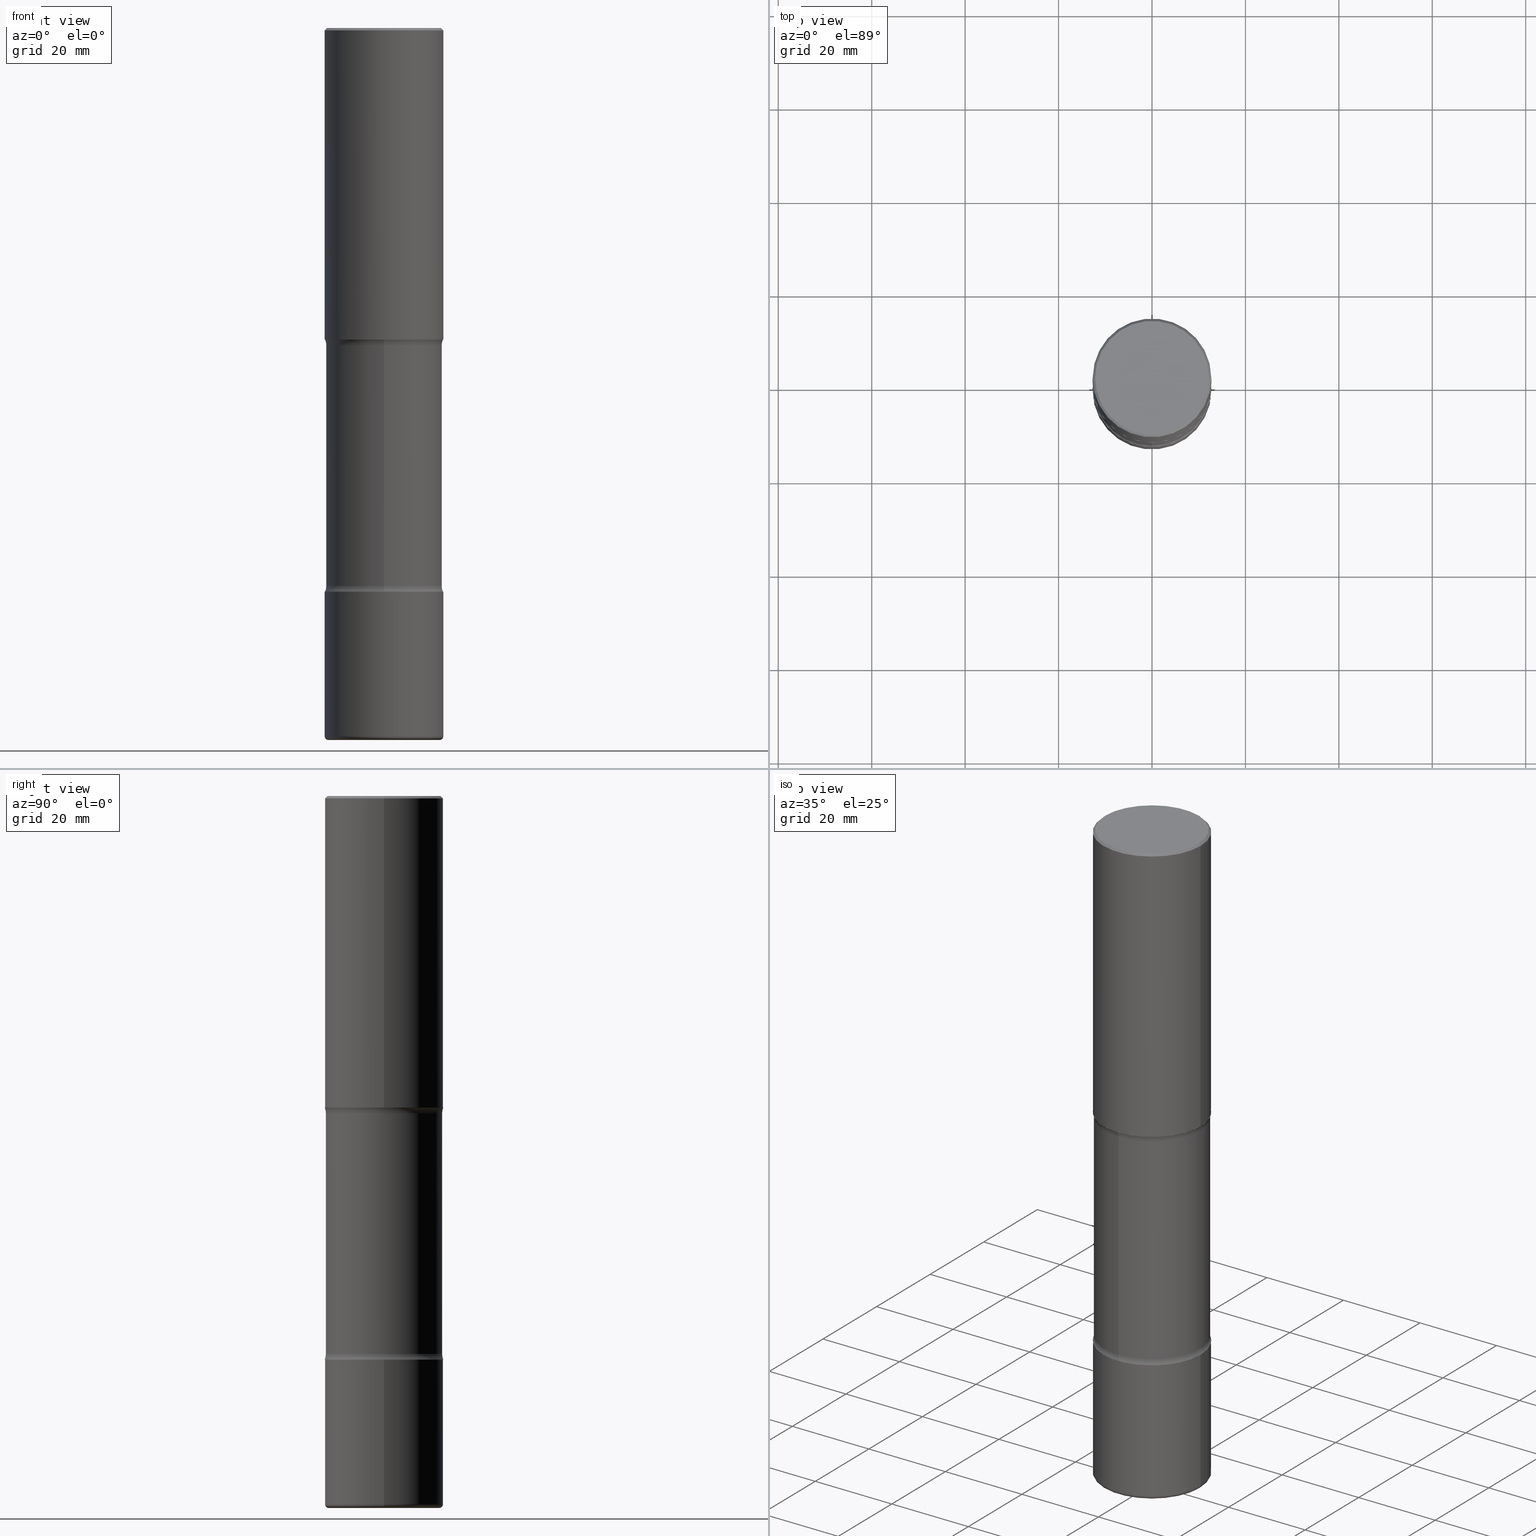
[diagram: canonical four-view strip — front | top / right | iso, engineering-drawing reading convention]
A machine part, canonical four-view strip (front | top / right | iso — engineering-drawing reading convention). The complete STEP part file that produces these views, byte-faithful:
ISO-10303-21;
HEADER;
FILE_DESCRIPTION (( 'STEP AP203' ),
    '1' );
FILE_NAME ('33524.STEP',
    '2024-03-01T22:45:10',
    ( '' ),
    ( '' ),
    'SwSTEP 2.0',
    'SolidWorks 2023',
    '' );
FILE_SCHEMA (( 'CONFIG_CONTROL_DESIGN' ));
ENDSEC;

DATA;
#1 = APPROVAL_DATE_TIME ( #169, #403 ) ;
#2 = EDGE_LOOP ( 'NONE', ( #218, #264, #299, #357 ) ) ;
#3 = ORIENTED_EDGE ( 'NONE', *, *, #385, .T. ) ;
#4 = DIRECTION ( 'NONE',  ( 6.982962677686265922E-15, 1.000000000000000000, -3.345119992241955130E-15 ) ) ;
#5 = ORIENTED_EDGE ( 'NONE', *, *, #114, .T. ) ;
#6 = CARTESIAN_POINT ( 'NONE',  ( 0.5000000000000005551, -3.500078625662632235E-15, -0.02000000000000000042 ) ) ;
#7 = CIRCLE ( 'NONE', #422, 0.5000000000000007772 ) ;
#8 = AXIS2_PLACEMENT_3D ( 'NONE', #406, #235, #541 ) ;
#9 = EDGE_LOOP ( 'NONE', ( #47, #221, #519, #509 ) ) ;
#10 = CARTESIAN_POINT ( 'NONE',  ( -0.5000000000000006661, 3.552713678800505663E-15, -2.459467545127455974E-29 ) ) ;
#11 = CARTESIAN_POINT ( 'NONE',  ( 0.000000000000000000, 0.000000000000000000, 0.000000000000000000 ) ) ;
#12 = DIRECTION ( 'NONE',  ( 2.598079946832093802E-29, -3.272933499350004525E-15, -1.000000000000000000 ) ) ;
#13 = ORIENTED_EDGE ( 'NONE', *, *, #210, .T. ) ;
#14 = CARTESIAN_POINT ( 'NONE',  ( 1.486357676291951651E-28, -2.067570323369244855E-14, -6.000000000000000888 ) ) ;
#15 = TOROIDAL_SURFACE ( 'NONE', #343, 0.6150000000000001021, 0.1250000000000000278 ) ;
#16 = AXIS2_PLACEMENT_3D ( 'NONE', #205, #382, #510 ) ;
#17 = AXIS2_PLACEMENT_3D ( 'NONE', #113, #417, #99 ) ;
#18 = DIRECTION ( 'NONE',  ( 6.982962677686266711E-15, 1.000000000000000000, -2.230079994827969693E-15 ) ) ;
#19 = CARTESIAN_POINT ( 'NONE',  ( -0.5000000000000005551, 3.421651712066274396E-15, -0.02000000000000000042 ) ) ;
#20 = CARTESIAN_POINT ( 'NONE',  ( -0.5000000000000005551, 3.421651712066274396E-15, -0.02000000000000000042 ) ) ;
#21 = CARTESIAN_POINT ( 'NONE',  ( 1.161597682937940108E-28, -1.658453635950494339E-14, -4.750000000000000000 ) ) ;
#22 = APPROVAL ( #503, 'UNSPECIFIED' ) ;
#23 = DIRECTION ( 'NONE',  ( -6.982962677686265133E-15, -1.000000000000000000, 0.000000000000000000 ) ) ;
#24 = CARTESIAN_POINT ( 'NONE',  ( -3.395946508896794322E-15, -0.4900000000000163669, -4.701010205144333653 ) ) ;
#25 = CARTESIAN_POINT ( 'NONE',  ( 1.161597682937940108E-28, -1.658453635950494339E-14, -4.750000000000000000 ) ) ;
#26 = CIRCLE ( 'NONE', #232, 0.4899999999999999911 ) ;
#27 = EDGE_CURVE ( 'NONE', #549, #243, #259, .T. ) ;
#28 = TOROIDAL_SURFACE ( 'NONE', #262, 0.4700000000000005840, 0.03000000000000029379 ) ;
#29 = ORIENTED_EDGE ( 'NONE', *, *, #270, .T. ) ;
#30 = ORIENTED_EDGE ( 'NONE', *, *, #418, .T. ) ;
#31 = ORIENTED_EDGE ( 'NONE', *, *, #206, .T. ) ;
#32 = CIRCLE ( 'NONE', #93, 0.5000000000000006661 ) ;
#33 = COORDINATED_UNIVERSAL_TIME_OFFSET ( 5, 0, .BEHIND. ) ;
#34 = CIRCLE ( 'NONE', #378, 0.03000000000000029379 ) ;
#35 = ORIENTED_EDGE ( 'NONE', *, *, #70, .F. ) ;
#36 = PERSON_AND_ORGANIZATION ( #269, #183 ) ;
#37 = FACE_OUTER_BOUND ( 'NONE', #189, .T. ) ;
#38 = UNCERTAINTY_MEASURE_WITH_UNIT (LENGTH_MEASURE( 1.000000000000000082E-05 ), #325, 'distance_accuracy_value', 'NONE');
#39 = COORDINATED_UNIVERSAL_TIME_OFFSET ( 5, 0, .BEHIND. ) ;
#40 = AXIS2_PLACEMENT_3D ( 'NONE', #60, #462, #106 ) ;
#41 = CIRCLE ( 'NONE', #533, 0.4800000000000005929 ) ;
#42 = ORIENTED_EDGE ( 'NONE', *, *, #57, .T. ) ;
#43 = EDGE_LOOP ( 'NONE', ( #133, #324, #3, #174 ) ) ;
#44 = CARTESIAN_POINT ( 'NONE',  ( 1.459944877292526494E-28, -2.084414359289357934E-14, -5.969999999999999751 ) ) ;
#45 = EDGE_LOOP ( 'NONE', ( #399, #162, #443, #35 ) ) ;
#46 = ADVANCED_FACE ( 'NONE', ( #37 ), #15, .F. ) ;
#47 = ORIENTED_EDGE ( 'NONE', *, *, #261, .F. ) ;
#48 = VECTOR ( 'NONE', #358, 39.37007874015748143 ) ;
#49 = CC_DESIGN_SECURITY_CLASSIFICATION ( #487, ( #209 ) ) ;
#50 = ORIENTED_EDGE ( 'NONE', *, *, #409, .T. ) ;
#51 = CARTESIAN_POINT ( 'NONE',  ( 1.161597682937940108E-28, -1.658453635950494339E-14, -4.750000000000000000 ) ) ;
#52 = DIRECTION ( 'NONE',  ( -1.000000000000000000, 7.105427357600986081E-15, 0.000000000000000000 ) ) ;
#53 = PLANE ( 'NONE',  #356 ) ;
#54 = CARTESIAN_POINT ( 'NONE',  ( 0.5000000000000006661, -2.007601769834807990E-14, -4.750000000000000000 ) ) ;
#55 = DIRECTION ( 'NONE',  ( -2.445468806185136597E-29, 3.491481338843145583E-15, 1.000000000000000000 ) ) ;
#56 = CARTESIAN_POINT ( 'NONE',  ( 0.4800000000000005929, -3.396558832296486043E-15, 1.280553747032483033E-17 ) ) ;
#57 = EDGE_CURVE ( 'NONE', #549, #90, #141, .T. ) ;
#58 = DIRECTION ( 'NONE',  ( -1.000000000000000000, 6.982962677686265922E-15, -4.883557194083112340E-29 ) ) ;
#59 = DIRECTION ( 'NONE',  ( 2.598079946832093241E-29, -3.272933499350004525E-15, -1.000000000000000000 ) ) ;
#60 = CARTESIAN_POINT ( 'NONE',  ( 4.890937612370273159E-31, -6.982962677686291609E-17, -0.02000000000000000042 ) ) ;
#61 = AXIS2_PLACEMENT_3D ( 'NONE', #335, #495, #458 ) ;
#62 = EDGE_CURVE ( 'NONE', #344, #440, #208, .T. ) ;
#63 = DIRECTION ( 'NONE',  ( -1.000000000000000000, 6.982962677686266711E-15, 0.000000000000000000 ) ) ;
#64 = DIRECTION ( 'NONE',  ( 6.982962677686265133E-15, 1.000000000000000000, -3.278217592397110735E-15 ) ) ;
#65 = DIRECTION ( 'NONE',  ( -2.445468806185136877E-29, 3.491481338843145188E-15, 1.000000000000000000 ) ) ;
#66 = CARTESIAN_POINT ( 'NONE',  ( 3.491481338843253657E-15, 0.4999999999999840128, -4.750000000000001776 ) ) ;
#67 = DIRECTION ( 'NONE',  ( -2.445468806185136597E-29, 3.491481338843145583E-15, 1.000000000000000000 ) ) ;
#68 = DIRECTION ( 'NONE',  ( -2.445468806185136597E-29, 3.491481338843145583E-15, 1.000000000000000000 ) ) ;
#69 = DIRECTION ( 'NONE',  ( 2.598079946832093802E-29, -3.272933499350004525E-15, -1.000000000000000000 ) ) ;
#70 = EDGE_CURVE ( 'NONE', #185, #353, #26, .T. ) ;
#71 = DATE_AND_TIME ( #464, #193 ) ;
#72 = AXIS2_PLACEMENT_3D ( 'NONE', #25, #372, #150 ) ;
#73 = VECTOR ( 'NONE', #328, 39.37007874015748143 ) ;
#74 = CARTESIAN_POINT ( 'NONE',  ( 3.491481338843198831E-15, 0.4999999999999911182, -2.625000000000002220 ) ) ;
#75 = APPLICATION_CONTEXT ( 'configuration controlled 3d designs of mechanical parts and assemblies' ) ;
#76 = DIRECTION ( 'NONE',  ( -2.438088387897960049E-29, 3.491481338843145188E-15, 1.000000000000000000 ) ) ;
#77 = DATE_AND_TIME ( #306, #95 ) ;
#78 = LINE ( 'NONE', #472, #295 ) ;
#79 = AXIS2_PLACEMENT_3D ( 'NONE', #256, #432, #483 ) ;
#80 = FACE_OUTER_BOUND ( 'NONE', #207, .T. ) ;
#81 = APPROVAL_DATE_TIME ( #302, #518 ) ;
#82 = DIRECTION ( 'NONE',  ( -1.000000000000000000, 6.982962677686265922E-15, -4.876176775795935793E-29 ) ) ;
#83 = DIRECTION ( 'NONE',  ( 2.598079946832093802E-29, -3.272933499350004525E-15, -1.000000000000000000 ) ) ;
#84 = PERSON_AND_ORGANIZATION ( #269, #183 ) ;
#85 = AXIS2_PLACEMENT_3D ( 'NONE', #322, #69, #195 ) ;
#86 = ORIENTED_EDGE ( 'NONE', *, *, #392, .T. ) ;
#87 = CIRCLE ( 'NONE', #202, 0.5000000000000006661 ) ;
#88 = EDGE_LOOP ( 'NONE', ( #468, #179 ) ) ;
#89 = EDGE_CURVE ( 'NONE', #526, #402, #317, .T. ) ;
#90 = VERTEX_POINT ( 'NONE', #91 ) ;
#91 = CARTESIAN_POINT ( 'NONE',  ( -3.395946508896849543E-15, -0.4900000000000100941, -2.673989794855663238 ) ) ;
#92 = EDGE_LOOP ( 'NONE', ( #118, #480, #223, #30 ) ) ;
#93 = AXIS2_PLACEMENT_3D ( 'NONE', #491, #101, #276 ) ;
#94 = FACE_OUTER_BOUND ( 'NONE', #2, .T. ) ;
#95 = LOCAL_TIME ( 17, 45, 10.00000000000000000, #33 ) ;
#96 = CC_DESIGN_PERSON_AND_ORGANIZATION_ASSIGNMENT ( #423, #346, ( #444 ) ) ;
#97 = MANIFOLD_SOLID_BREP ( 'Body-Move/Copy2[1]', #139 ) ;
#98 = CARTESIAN_POINT ( 'NONE',  ( 1.467281283711081958E-28, -2.094888803305887271E-14, -6.000000000000000888 ) ) ;
#99 = DIRECTION ( 'NONE',  ( 1.000000000000000000, -6.982962677686266711E-15, 4.876176775795935793E-29 ) ) ;
#100 = VERTEX_POINT ( 'NONE', #267 ) ;
#101 = DIRECTION ( 'NONE',  ( -2.445468806185136597E-29, 3.491481338843145583E-15, 1.000000000000000000 ) ) ;
#102 = MANIFOLD_SOLID_BREP ( 'Body-Move/Copy2[2]', #531 ) ;
#103 = EDGE_CURVE ( 'NONE', #265, #243, #304, .T. ) ;
#104 = CARTESIAN_POINT ( 'NONE',  ( 3.421651712066419546E-15, 0.4899999999999793965, -6.000000000000001776 ) ) ;
#105 = EDGE_CURVE ( 'NONE', #178, #482, #552, .T. ) ;
#106 = DIRECTION ( 'NONE',  ( 1.000000000000000000, -6.982962677686266711E-15, 0.000000000000000000 ) ) ;
#107 = DIRECTION ( 'NONE',  ( 1.000000000000000000, -6.982962677686265922E-15, 4.883557194083112901E-29 ) ) ;
#108 = DIRECTION ( 'NONE',  ( 1.000000000000000000, -6.982962677686329031E-15, 0.000000000000000000 ) ) ;
#109 = DIRECTION ( 'NONE',  ( -0.7071067811865459074, 2.468850131082240100E-15, -0.7071067811865491270 ) ) ;
#110 = DIRECTION ( 'NONE',  ( 7.105427357601001859E-15, 1.000000000000000000, -3.491481338843145583E-15 ) ) ;
#111 = AXIS2_PLACEMENT_3D ( 'NONE', #500, #288, #461 ) ;
#112 =( LENGTH_UNIT ( ) NAMED_UNIT ( * ) SI_UNIT ( $, .METRE. ) );
#113 = CARTESIAN_POINT ( 'NONE',  ( 0.000000000000000000, 0.000000000000000000, 0.000000000000000000 ) ) ;
#114 = EDGE_CURVE ( 'NONE', #90, #265, #355, .T. ) ;
#115 = PERSON_AND_ORGANIZATION_ROLE ( 'design_owner' ) ;
#116 = EDGE_CURVE ( 'NONE', #136, #100, #455, .T. ) ;
#117 = APPROVAL_ROLE ( '' ) ;
#118 = ORIENTED_EDGE ( 'NONE', *, *, #114, .F. ) ;
#119 = FACE_OUTER_BOUND ( 'NONE', #477, .T. ) ;
#120 = AXIS2_PLACEMENT_3D ( 'NONE', #290, #58, #23 ) ;
#121 = CIRCLE ( 'NONE', #253, 0.5000000000000007772 ) ;
#122 = ORIENTED_EDGE ( 'NONE', *, *, #294, .T. ) ;
#123 = ORIENTED_EDGE ( 'NONE', *, *, #385, .F. ) ;
#124 = CALENDAR_DATE ( 2024, 1, 3 ) ;
#125 = AXIS2_PLACEMENT_3D ( 'NONE', #144, #68, #448 ) ;
#126 = VECTOR ( 'NONE', #274, 39.37007874015748143 ) ;
#127 = PERSON_AND_ORGANIZATION ( #269, #183 ) ;
#128 = CARTESIAN_POINT ( 'NONE',  ( 3.351822085289412281E-15, 0.4800000000000005929, -1.669508273909561417E-15 ) ) ;
#129 = EDGE_CURVE ( 'NONE', #421, #248, #522, .T. ) ;
#130 = DIRECTION ( 'NONE',  ( 6.982962677686265922E-15, 1.000000000000000000, -3.345119992241952764E-15 ) ) ;
#131 = APPROVAL_STATUS ( 'not_yet_approved' ) ;
#132 = ORIENTED_EDGE ( 'NONE', *, *, #270, .F. ) ;
#133 = ORIENTED_EDGE ( 'NONE', *, *, #145, .F. ) ;
#134 = AXIS2_PLACEMENT_3D ( 'NONE', #160, #199, #548 ) ;
#135 = EDGE_LOOP ( 'NONE', ( #340, #5, #452, #397 ) ) ;
#136 = VERTEX_POINT ( 'NONE', #54 ) ;
#137 = ORIENTED_EDGE ( 'NONE', *, *, #409, .F. ) ;
#138 = DIRECTION ( 'NONE',  ( 1.000000000000000000, -6.982962677686265133E-15, 0.000000000000000000 ) ) ;
#139 = CLOSED_SHELL ( 'NONE', ( #351, #171, #520, #550, #513, #146 ) ) ;
#140 = ORIENTED_EDGE ( 'NONE', *, *, #300, .F. ) ;
#141 = CIRCLE ( 'NONE', #155, 0.4900000000000003242 ) ;
#142 = CARTESIAN_POINT ( 'NONE',  ( 1.467281283711081958E-28, -2.094888803305887271E-14, -6.000000000000000888 ) ) ;
#143 = AXIS2_PLACEMENT_3D ( 'NONE', #542, #152, #529 ) ;
#144 = CARTESIAN_POINT ( 'NONE',  ( 1.467281283711081958E-28, -2.094888803305887271E-14, -6.000000000000000888 ) ) ;
#145 = EDGE_CURVE ( 'NONE', #482, #442, #190, .T. ) ;
#146 = ADVANCED_FACE ( 'NONE', ( #536 ), #540, .F. ) ;
#147 = LINE ( 'NONE', #231, #73 ) ;
#148 = DIRECTION ( 'NONE',  ( 2.438088387897960049E-29, -3.491481338843145188E-15, -1.000000000000000000 ) ) ;
#149 = DIMENSIONAL_EXPONENTS ( 1.000000000000000000, 0.000000000000000000, 0.000000000000000000, 0.000000000000000000, 0.000000000000000000, 0.000000000000000000, 0.000000000000000000 ) ;
#150 = DIRECTION ( 'NONE',  ( 6.982962677686265922E-15, 1.000000000000000000, -3.278217592397111523E-15 ) ) ;
#151 = PLANE ( 'NONE',  #244 ) ;
#152 = DIRECTION ( 'NONE',  ( -2.445468806185136597E-29, 3.491481338843145583E-15, 1.000000000000000000 ) ) ;
#153 = ADVANCED_FACE ( 'NONE', ( #329 ), #435, .F. ) ;
#154 = EDGE_CURVE ( 'NONE', #440, #344, #32, .T. ) ;
#155 = AXIS2_PLACEMENT_3D ( 'NONE', #441, #438, #130 ) ;
#156 = VECTOR ( 'NONE', #404, 39.37007874015748143 ) ;
#157 = LOCAL_TIME ( 17, 45, 10.00000000000000000, #247 ) ;
#158 = CARTESIAN_POINT ( 'NONE',  ( 1.161597682937940108E-28, -1.658453635950494339E-14, -4.750000000000000000 ) ) ;
#159 = PERSON_AND_ORGANIZATION ( #269, #183 ) ;
#160 = CARTESIAN_POINT ( 'NONE',  ( -4.219206268629376327E-15, -0.6150000000000164224, -4.701010205144333653 ) ) ;
#161 = ADVANCED_FACE ( 'NONE', ( #527 ), #543, .F. ) ;
#162 = ORIENTED_EDGE ( 'NONE', *, *, #312, .T. ) ;
#163 = CIRCLE ( 'NONE', #125, 0.4700000000000002509 ) ;
#164 = APPROVAL_PERSON_ORGANIZATION ( #386, #403, #430 ) ;
#165 = CARTESIAN_POINT ( 'NONE',  ( 4.890937612370273159E-31, -6.982962677686291609E-17, -0.02000000000000000042 ) ) ;
#166 = EDGE_CURVE ( 'NONE', #182, #442, #412, .T. ) ;
#167 = APPROVAL_ROLE ( '' ) ;
#168 = ORIENTED_EDGE ( 'NONE', *, *, #439, .T. ) ;
#169 = DATE_AND_TIME ( #555, #157 ) ;
#170 = DIRECTION ( 'NONE',  ( 2.438088387897960049E-29, -3.491481338843145188E-15, -1.000000000000000000 ) ) ;
#171 = ADVANCED_FACE ( 'NONE', ( #94 ), #181, .T. ) ;
#172 = SHAPE_DEFINITION_REPRESENTATION ( #239, #410 ) ;
#173 = ADVANCED_FACE ( 'NONE', ( #371 ), #321, .T. ) ;
#174 = ORIENTED_EDGE ( 'NONE', *, *, #268, .F. ) ;
#175 = AXIS2_PLACEMENT_3D ( 'NONE', #51, #238, #284 ) ;
#176 = AXIS2_PLACEMENT_3D ( 'NONE', #383, #287, #553 ) ;
#177 = PERSON_AND_ORGANIZATION_ROLE ( 'creator' ) ;
#178 = VERTEX_POINT ( 'NONE', #420 ) ;
#179 = ORIENTED_EDGE ( 'NONE', *, *, #474, .T. ) ;
#180 = DIRECTION ( 'NONE',  ( 2.598079946832093802E-29, -3.272933499350004525E-15, -1.000000000000000000 ) ) ;
#181 = TOROIDAL_SURFACE ( 'NONE', #61, 0.4700000000000005840, 0.03000000000000029379 ) ;
#182 = VERTEX_POINT ( 'NONE', #379 ) ;
#183 = ORGANIZATION ( 'UNSPECIFIED', 'UNSPECIFIED', '' ) ;
#184 = ORIENTED_EDGE ( 'NONE', *, *, #166, .T. ) ;
#185 = VERTEX_POINT ( 'NONE', #24 ) ;
#186 = DIRECTION ( 'NONE',  ( 6.982962677686265922E-15, 1.000000000000000000, -3.272933499350004920E-15 ) ) ;
#187 = FACE_OUTER_BOUND ( 'NONE', #405, .T. ) ;
#188 = CARTESIAN_POINT ( 'NONE',  ( 6.095056942361201258E-29, -9.629552673386184613E-15, -2.625000000000000444 ) ) ;
#189 = EDGE_LOOP ( 'NONE', ( #266, #434, #275, #469 ) ) ;
#190 = LINE ( 'NONE', #10, #313 ) ;
#191 = EDGE_CURVE ( 'NONE', #530, #185, #497, .T. ) ;
#192 = VECTOR ( 'NONE', #236, 39.37007874015748143 ) ;
#193 = LOCAL_TIME ( 17, 45, 10.00000000000000000, #291 ) ;
#194 = FACE_OUTER_BOUND ( 'NONE', #45, .T. ) ;
#195 = DIRECTION ( 'NONE',  ( 6.982962677686265922E-15, 1.000000000000000000, -3.272933499350004525E-15 ) ) ;
#196 = FACE_OUTER_BOUND ( 'NONE', #429, .T. ) ;
#197 = ADVANCED_FACE ( 'NONE', ( #534 ), #349, .F. ) ;
#198 = CARTESIAN_POINT ( 'NONE',  ( 3.421651712066385231E-15, 0.4899999999999835598, -4.701010205144337206 ) ) ;
#199 = DIRECTION ( 'NONE',  ( 1.000000000000000000, -6.860497997771530774E-15, 4.843475318745101421E-29 ) ) ;
#200 = AXIS2_PLACEMENT_3D ( 'NONE', #128, #170, #82 ) ;
#201 = CARTESIAN_POINT ( 'NONE',  ( -0.4700000000000005840, -1.750459273482110076E-14, -5.969999999999999751 ) ) ;
#202 = AXIS2_PLACEMENT_3D ( 'NONE', #460, #376, #336 ) ;
#203 = ORIENTED_EDGE ( 'NONE', *, *, #116, .F. ) ;
#204 = EDGE_LOOP ( 'NONE', ( #319, #524 ) ) ;
#205 = CARTESIAN_POINT ( 'NONE',  ( 6.205321761211701849E-29, -9.814258867886811691E-15, -2.673989794855665014 ) ) ;
#206 = EDGE_CURVE ( 'NONE', #402, #442, #250, .T. ) ;
#207 = EDGE_LOOP ( 'NONE', ( #303, #292, #31, #246 ) ) ;
#208 = CIRCLE ( 'NONE', #348, 0.5000000000000006661 ) ;
#209 = PRODUCT_DEFINITION_FORMATION_WITH_SPECIFIED_SOURCE ( 'ANY', '', #505, .NOT_KNOWN. ) ;
#210 = EDGE_CURVE ( 'NONE', #440, #136, #78, .T. ) ;
#211 = ADVANCED_FACE ( 'NONE', ( #119 ), #298, .F. ) ;
#212 = DIRECTION ( 'NONE',  ( 1.000000000000000000, -6.982962677686265922E-15, 4.876176775795935793E-29 ) ) ;
#213 = AXIS2_PLACEMENT_3D ( 'NONE', #21, #148, #326 ) ;
#214 = AXIS2_PLACEMENT_3D ( 'NONE', #165, #538, #63 ) ;
#215 = APPROVAL_STATUS ( 'not_yet_approved' ) ;
#216 = EDGE_LOOP ( 'NONE', ( #42, #168, #362, #342 ) ) ;
#217 = ORIENTED_EDGE ( 'NONE', *, *, #145, .T. ) ;
#218 = ORIENTED_EDGE ( 'NONE', *, *, #129, .T. ) ;
#219 = CARTESIAN_POINT ( 'NONE',  ( 4.294522046777118082E-15, 0.6149999999999905542, -2.673989794855666791 ) ) ;
#220 = AXIS2_PLACEMENT_3D ( 'NONE', #511, #76, #212 ) ;
#221 = ORIENTED_EDGE ( 'NONE', *, *, #191, .T. ) ;
#222 = CARTESIAN_POINT ( 'NONE',  ( 6.095056942361201258E-29, -9.629552673386184613E-15, -2.625000000000000444 ) ) ;
#223 = ORIENTED_EDGE ( 'NONE', *, *, #27, .T. ) ;
#224 = EDGE_CURVE ( 'NONE', #482, #178, #7, .T. ) ;
#225 = DIRECTION ( 'NONE',  ( -2.445468806185136597E-29, 3.491481338843145583E-15, 1.000000000000000000 ) ) ;
#226 = ADVANCED_FACE ( 'NONE', ( #245 ), #334, .F. ) ;
#227 = CARTESIAN_POINT ( 'NONE',  ( 6.222336345975120465E-29, -9.789893014095570638E-15, -2.673989794855665014 ) ) ;
#228 = CARTESIAN_POINT ( 'NONE',  ( -3.430248998885653369E-15, -0.5000000000000172085, -4.749999999999999112 ) ) ;
#229 = DIRECTION ( 'NONE',  ( 1.000000000000000000, -6.982962677686266711E-15, 4.876176775795935793E-29 ) ) ;
#230 = CARTESIAN_POINT ( 'NONE',  ( 1.459944877292526494E-28, -2.084414359289357934E-14, -5.969999999999999751 ) ) ;
#231 = CARTESIAN_POINT ( 'NONE',  ( 0.5000000000000006661, -3.491481338843138088E-15, 2.438088387897971260E-29 ) ) ;
#232 = AXIS2_PLACEMENT_3D ( 'NONE', #398, #83, #4 ) ;
#233 = DIRECTION ( 'NONE',  ( 6.982962677686265922E-15, 1.000000000000000000, -3.272933499350004525E-15 ) ) ;
#234 = CC_DESIGN_APPROVAL ( #518, ( #487 ) ) ;
#235 = DIRECTION ( 'NONE',  ( 2.598079946832093802E-29, -3.272933499350004525E-15, -1.000000000000000000 ) ) ;
#236 = DIRECTION ( 'NONE',  ( -2.445468806185136877E-29, 3.491481338843145188E-15, 1.000000000000000000 ) ) ;
#237 = FACE_OUTER_BOUND ( 'NONE', #43, .T. ) ;
#238 = DIRECTION ( 'NONE',  ( -2.445468806185136597E-29, 3.491481338843145583E-15, 1.000000000000000000 ) ) ;
#239 = PRODUCT_DEFINITION_SHAPE ( 'NONE', 'NONE',  #444 ) ;
#240 = DIRECTION ( 'NONE',  ( -6.982962677686265922E-15, -1.000000000000000000, 3.272933499350004525E-15 ) ) ;
#241 = APPROVAL_DATE_TIME ( #71, #22 ) ;
#242 = CIRCLE ( 'NONE', #391, 0.03000000000000029379 ) ;
#243 = VERTEX_POINT ( 'NONE', #74 ) ;
#244 = AXIS2_PLACEMENT_3D ( 'NONE', #98, #273, #373 ) ;
#245 = FACE_OUTER_BOUND ( 'NONE', #135, .T. ) ;
#246 = ORIENTED_EDGE ( 'NONE', *, *, #166, .F. ) ;
#247 = COORDINATED_UNIVERSAL_TIME_OFFSET ( 5, 0, .BEHIND. ) ;
#248 = VERTEX_POINT ( 'NONE', #501 ) ;
#249 = DIRECTION ( 'NONE',  ( -2.445468806185136877E-29, 3.491481338843145188E-15, 1.000000000000000000 ) ) ;
#250 = CIRCLE ( 'NONE', #445, 0.5000000000000005551 ) ;
#251 = ADVANCED_FACE ( 'NONE', ( #537 ), #375, .T. ) ;
#252 = ADVANCED_FACE ( 'NONE', ( #369 ), #289, .T. ) ;
#253 = AXIS2_PLACEMENT_3D ( 'NONE', #188, #12, #64 ) ;
#254 = EDGE_LOOP ( 'NONE', ( #316, #387 ) ) ;
#255 = CARTESIAN_POINT ( 'NONE',  ( 6.419355616235984688E-29, -9.165138514463258190E-15, -2.625000000000000444 ) ) ;
#256 = CARTESIAN_POINT ( 'NONE',  ( 6.419355616235984688E-29, -9.165138514463258190E-15, -2.625000000000000444 ) ) ;
#257 = CC_DESIGN_PERSON_AND_ORGANIZATION_ASSIGNMENT ( #127, #433, ( #487 ) ) ;
#258 = SECURITY_CLASSIFICATION_LEVEL ( 'unclassified' ) ;
#259 = CIRCLE ( 'NONE', #427, 0.1250000000000000278 ) ;
#260 = CIRCLE ( 'NONE', #72, 0.5000000000000006661 ) ;
#261 = EDGE_CURVE ( 'NONE', #530, #479, #260, .T. ) ;
#262 = AXIS2_PLACEMENT_3D ( 'NONE', #230, #459, #107 ) ;
#263 = DATE_TIME_ROLE ( 'classification_date' ) ;
#264 = ORIENTED_EDGE ( 'NONE', *, *, #300, .T. ) ;
#265 = VERTEX_POINT ( 'NONE', #485 ) ;
#266 = ORIENTED_EDGE ( 'NONE', *, *, #191, .F. ) ;
#267 = CARTESIAN_POINT ( 'NONE',  ( -0.5000000000000006661, -1.516162629739875255E-14, -4.750000000000000000 ) ) ;
#268 = EDGE_CURVE ( 'NONE', #442, #402, #377, .T. ) ;
#269 = PERSON ( 'UNSPECIFIED', 'UNSPECIFIED', 'UNSPECIFIED', ('UNSPECIFIED'), ('UNSPECIFIED'), ('UNSPECIFIED') ) ;
#270 = EDGE_CURVE ( 'NONE', #248, #421, #163, .T. ) ;
#271 = AXIS2_PLACEMENT_3D ( 'NONE', #493, #59, #233 ) ;
#272 = DIRECTION ( 'NONE',  ( 6.982962677686266711E-15, 1.000000000000000000, -2.230079994827969693E-15 ) ) ;
#273 = DIRECTION ( 'NONE',  ( 2.438088387897960049E-29, -3.491481338843145188E-15, -1.000000000000000000 ) ) ;
#274 = DIRECTION ( 'NONE',  ( 2.598079946832093802E-29, -3.272933499350004525E-15, -1.000000000000000000 ) ) ;
#275 = ORIENTED_EDGE ( 'NONE', *, *, #318, .T. ) ;
#276 = DIRECTION ( 'NONE',  ( 1.000000000000000000, -6.982962677686269077E-15, 0.000000000000000000 ) ) ;
#277 = CARTESIAN_POINT ( 'NONE',  ( -3.131554243005659264E-46, 4.471029511141341874E-32, 1.280553747030123384E-17 ) ) ;
#278 = DIRECTION ( 'NONE',  ( 6.860497997771532351E-15, 1.000000000000000000, 0.000000000000000000 ) ) ;
#279 = CARTESIAN_POINT ( 'NONE',  ( 0.000000000000000000, 0.000000000000000000, 0.000000000000000000 ) ) ;
#280 = CARTESIAN_POINT ( 'NONE',  ( 3.421651712066334744E-15, 0.4899999999999905542, -2.673989794855666347 ) ) ;
#281 = CYLINDRICAL_SURFACE ( 'NONE', #143, 0.5000000000000006661 ) ;
#282 =( NAMED_UNIT ( * ) SI_UNIT ( $, .STERADIAN. ) SOLID_ANGLE_UNIT ( ) );
#283 = AXIS2_PLACEMENT_3D ( 'NONE', #142, #225, #453 ) ;
#284 = DIRECTION ( 'NONE',  ( 1.000000000000000000, -6.982962677686265133E-15, 0.000000000000000000 ) ) ;
#285 = FACE_OUTER_BOUND ( 'NONE', #426, .T. ) ;
#286 = LINE ( 'NONE', #104, #156 ) ;
#287 = DIRECTION ( 'NONE',  ( 0.000000000000000000, 0.000000000000000000, 1.000000000000000000 ) ) ;
#288 = DIRECTION ( 'NONE',  ( 2.445468806185136597E-29, -3.491481338843145583E-15, -1.000000000000000000 ) ) ;
#289 = CYLINDRICAL_SURFACE ( 'NONE', #470, 0.5000000000000006661 ) ;
#290 = CARTESIAN_POINT ( 'NONE',  ( 4.294522046777168570E-15, 0.6149999999999836708, -4.701010205144338094 ) ) ;
#291 = COORDINATED_UNIVERSAL_TIME_OFFSET ( 5, 0, .BEHIND. ) ;
#292 = ORIENTED_EDGE ( 'NONE', *, *, #89, .T. ) ;
#293 = MANIFOLD_SOLID_BREP ( 'Body-Move/Copy2[4]', #466 ) ;
#294 = EDGE_CURVE ( 'NONE', #526, #182, #514, .T. ) ;
#295 = VECTOR ( 'NONE', #249, 39.37007874015748143 ) ;
#296 = ORIENTED_EDGE ( 'NONE', *, *, #105, .F. ) ;
#297 = CIRCLE ( 'NONE', #446, 0.5000000000000006661 ) ;
#298 = PLANE ( 'NONE',  #200 ) ;
#299 = ORIENTED_EDGE ( 'NONE', *, *, #154, .F. ) ;
#300 = EDGE_CURVE ( 'NONE', #248, #344, #242, .T. ) ;
#301 = ORIENTED_EDGE ( 'NONE', *, *, #337, .F. ) ;
#302 = DATE_AND_TIME ( #124, #508 ) ;
#303 = ORIENTED_EDGE ( 'NONE', *, *, #294, .F. ) ;
#304 = CIRCLE ( 'NONE', #507, 0.5000000000000007772 ) ;
#305 = LOCAL_TIME ( 17, 45, 10.00000000000000000, #39 ) ;
#306 = CALENDAR_DATE ( 2024, 1, 3 ) ;
#307 = DIRECTION ( 'NONE',  ( 6.982962677686265133E-15, 1.000000000000000000, -3.278217592397110735E-15 ) ) ;
#308 = DIRECTION ( 'NONE',  ( -2.445468806185136597E-29, 3.491481338843145583E-15, 1.000000000000000000 ) ) ;
#309 = DATE_TIME_ROLE ( 'creation_date' ) ;
#310 = DIRECTION ( 'NONE',  ( -2.445468806185136597E-29, 3.491481338843145583E-15, 1.000000000000000000 ) ) ;
#311 = ORIENTED_EDGE ( 'NONE', *, *, #62, .T. ) ;
#312 = EDGE_CURVE ( 'NONE', #90, #549, #467, .T. ) ;
#313 = VECTOR ( 'NONE', #65, 39.37007874015748143 ) ;
#314 = ORIENTED_EDGE ( 'NONE', *, *, #210, .F. ) ;
#315 = CARTESIAN_POINT ( 'NONE',  ( 1.149617381423846373E-28, -1.641348940497263768E-14, -4.701010205144335430 ) ) ;
#316 = ORIENTED_EDGE ( 'NONE', *, *, #418, .F. ) ;
#317 = LINE ( 'NONE', #6, #48 ) ;
#318 = EDGE_CURVE ( 'NONE', #479, #353, #365, .T. ) ;
#319 = ORIENTED_EDGE ( 'NONE', *, *, #407, .T. ) ;
#320 = DIRECTION ( 'NONE',  ( -2.445468806185136597E-29, 3.491481338843145583E-15, 1.000000000000000000 ) ) ;
#321 = CONICAL_SURFACE ( 'NONE', #111, 0.5000000000000005551, 0.7853981633974460586 ) ;
#322 = CARTESIAN_POINT ( 'NONE',  ( 1.149617381423846373E-28, -1.641348940497263768E-14, -4.701010205144335430 ) ) ;
#323 = AXIS2_PLACEMENT_3D ( 'NONE', #528, #363, #18 ) ;
#324 = ORIENTED_EDGE ( 'NONE', *, *, #224, .T. ) ;
#325 =( CONVERSION_BASED_UNIT ( 'INCH', #339 ) LENGTH_UNIT ( ) NAMED_UNIT ( #149 ) );
#326 = DIRECTION ( 'NONE',  ( -1.000000000000000000, 6.982962677686265922E-15, -4.876176775795935793E-29 ) ) ;
#327 = CYLINDRICAL_SURFACE ( 'NONE', #515, 0.5000000000000006661 ) ;
#328 = DIRECTION ( 'NONE',  ( -2.445468806185136877E-29, 3.491481338843145188E-15, 1.000000000000000000 ) ) ;
#329 = FACE_OUTER_BOUND ( 'NONE', #92, .T. ) ;
#330 = CARTESIAN_POINT ( 'NONE',  ( -0.5000000000000006661, 3.552713678800505663E-15, -2.459467545127455974E-29 ) ) ;
#331 = APPLICATION_PROTOCOL_DEFINITION ( 'international standard', 'config_control_design', 1994, #75 ) ;
#332 = DIRECTION ( 'NONE',  ( -2.445468806185136597E-29, 3.491481338843145583E-15, 1.000000000000000000 ) ) ;
#333 = AXIS2_PLACEMENT_3D ( 'NONE', #14, #544, #272 ) ;
#334 = TOROIDAL_SURFACE ( 'NONE', #16, 0.6150000000000004352, 0.1250000000000000278 ) ;
#335 = CARTESIAN_POINT ( 'NONE',  ( 1.459944877292526494E-28, -2.084414359289357934E-14, -5.969999999999999751 ) ) ;
#336 = DIRECTION ( 'NONE',  ( 6.982962677686265922E-15, 1.000000000000000000, -3.278217592397111523E-15 ) ) ;
#337 = EDGE_CURVE ( 'NONE', #344, #100, #374, .T. ) ;
#338 = APPLICATION_PROTOCOL_DEFINITION ( 'international standard', 'config_control_design', 1994, #457 ) ;
#339 = LENGTH_MEASURE_WITH_UNIT ( LENGTH_MEASURE( 0.02539999999999999897 ), #112 );
#340 = ORIENTED_EDGE ( 'NONE', *, *, #312, .F. ) ;
#341 = ADVANCED_FACE ( 'NONE', ( #498 ), #345, .F. ) ;
#342 = ORIENTED_EDGE ( 'NONE', *, *, #380, .F. ) ;
#343 = AXIS2_PLACEMENT_3D ( 'NONE', #315, #347, #560 ) ;
#344 = VERTEX_POINT ( 'NONE', #366 ) ;
#345 = TOROIDAL_SURFACE ( 'NONE', #85, 0.6150000000000001021, 0.1250000000000000278 ) ;
#346 = PERSON_AND_ORGANIZATION_ROLE ( 'creator' ) ;
#347 = DIRECTION ( 'NONE',  ( 2.598079946832093802E-29, -3.272933499350004525E-15, -1.000000000000000000 ) ) ;
#348 = AXIS2_PLACEMENT_3D ( 'NONE', #44, #310, #400 ) ;
#349 = PLANE ( 'NONE',  #220 ) ;
#350 = EDGE_LOOP ( 'NONE', ( #296, #384 ) ) ;
#351 = ADVANCED_FACE ( 'NONE', ( #535 ), #281, .T. ) ;
#352 = ADVANCED_FACE ( 'NONE', ( #237 ), #370, .T. ) ;
#353 = VERTEX_POINT ( 'NONE', #198 ) ;
#354 = ORIENTED_EDGE ( 'NONE', *, *, #337, .T. ) ;
#355 = CIRCLE ( 'NONE', #558, 0.1250000000000000278 ) ;
#356 = AXIS2_PLACEMENT_3D ( 'NONE', #551, #389, #240 ) ;
#357 = ORIENTED_EDGE ( 'NONE', *, *, #392, .F. ) ;
#358 = DIRECTION ( 'NONE',  ( 0.7071067811865459074, -7.319954787623249734E-15, -0.7071067811865491270 ) ) ;
#359 = ORIENTED_EDGE ( 'NONE', *, *, #89, .F. ) ;
#360 = CARTESIAN_POINT ( 'NONE',  ( 0.4700000000000002509, -2.423088049157142248E-14, -6.000000000000000888 ) ) ;
#361 = CC_DESIGN_PERSON_AND_ORGANIZATION_ASSIGNMENT ( #84, #557, ( #209 ) ) ;
#362 = ORIENTED_EDGE ( 'NONE', *, *, #554, .F. ) ;
#363 = DIRECTION ( 'NONE',  ( 2.598079946832093802E-29, -3.272933499350004525E-15, -1.000000000000000000 ) ) ;
#364 = DESIGN_CONTEXT ( 'detailed design', #457, 'design' ) ;
#365 = CIRCLE ( 'NONE', #120, 0.1250000000000000278 ) ;
#366 = CARTESIAN_POINT ( 'NONE',  ( -0.5000000000000007772, -1.729142991409307210E-14, -5.969999999999999751 ) ) ;
#367 = CONICAL_SURFACE ( 'NONE', #214, 0.5000000000000005551, 0.7853981633974460586 ) ;
#368 = DIRECTION ( 'NONE',  ( 1.000000000000000000, -6.860497997771530774E-15, 4.843475318745101421E-29 ) ) ;
#369 = FACE_OUTER_BOUND ( 'NONE', #490, .T. ) ;
#370 = CYLINDRICAL_SURFACE ( 'NONE', #17, 0.5000000000000006661 ) ;
#371 = FACE_OUTER_BOUND ( 'NONE', #516, .T. ) ;
#372 = DIRECTION ( 'NONE',  ( 2.598079946832093802E-29, -3.272933499350004525E-15, -1.000000000000000000 ) ) ;
#373 = DIRECTION ( 'NONE',  ( -1.000000000000000000, 6.982962677686265922E-15, -4.876176775795935793E-29 ) ) ;
#374 = LINE ( 'NONE', #330, #192 ) ;
#375 = CYLINDRICAL_SURFACE ( 'NONE', #333, 0.4900000000000001021 ) ;
#376 = DIRECTION ( 'NONE',  ( 2.598079946832093802E-29, -3.272933499350004525E-15, -1.000000000000000000 ) ) ;
#377 = CIRCLE ( 'NONE', #40, 0.5000000000000005551 ) ;
#378 = AXIS2_PLACEMENT_3D ( 'NONE', #456, #502, #108 ) ;
#379 = CARTESIAN_POINT ( 'NONE',  ( -0.4800000000000005929, 3.386736898677843141E-15, 1.280553747027767124E-17 ) ) ;
#380 = EDGE_CURVE ( 'NONE', #549, #353, #286, .T. ) ;
#381 = ORIENTED_EDGE ( 'NONE', *, *, #62, .F. ) ;
#382 = DIRECTION ( 'NONE',  ( 2.598079946832093802E-29, -3.272933499350004525E-15, -1.000000000000000000 ) ) ;
#383 = CARTESIAN_POINT ( 'NONE',  ( 0.000000000000000000, 0.000000000000000000, 0.000000000000000000 ) ) ;
#384 = ORIENTED_EDGE ( 'NONE', *, *, #224, .F. ) ;
#385 = EDGE_CURVE ( 'NONE', #178, #402, #147, .T. ) ;
#386 = PERSON_AND_ORGANIZATION ( #269, #183 ) ;
#387 = ORIENTED_EDGE ( 'NONE', *, *, #103, .F. ) ;
#388 = CARTESIAN_POINT ( 'NONE',  ( 4.890937612370273159E-31, -6.982962677686291609E-17, -0.02000000000000000042 ) ) ;
#389 = DIRECTION ( 'NONE',  ( -2.598079946832093241E-29, 3.272933499350004525E-15, 1.000000000000000000 ) ) ;
#390 = DATE_AND_TIME ( #431, #305 ) ;
#391 = AXIS2_PLACEMENT_3D ( 'NONE', #201, #110, #52 ) ;
#392 = EDGE_CURVE ( 'NONE', #421, #440, #34, .T. ) ;
#393 = APPROVAL_PERSON_ORGANIZATION ( #396, #518, #167 ) ;
#394 = ORIENTED_EDGE ( 'NONE', *, *, #474, .F. ) ;
#395 = DIRECTION ( 'NONE',  ( -6.982962677686265133E-15, -1.000000000000000000, 0.000000000000000000 ) ) ;
#396 = PERSON_AND_ORGANIZATION ( #269, #183 ) ;
#397 = ORIENTED_EDGE ( 'NONE', *, *, #27, .F. ) ;
#398 = CARTESIAN_POINT ( 'NONE',  ( 1.148869742576547963E-28, -1.642419601879555421E-14, -4.701010205144335430 ) ) ;
#399 = ORIENTED_EDGE ( 'NONE', *, *, #439, .F. ) ;
#400 = DIRECTION ( 'NONE',  ( 1.000000000000000000, -6.982962677686269077E-15, 0.000000000000000000 ) ) ;
#401 = CC_DESIGN_APPROVAL ( #403, ( #209 ) ) ;
#402 = VERTEX_POINT ( 'NONE', #463 ) ;
#403 = APPROVAL ( #131, 'UNSPECIFIED' ) ;
#404 = DIRECTION ( 'NONE',  ( 2.598079946832093802E-29, -3.272933499350004525E-15, -1.000000000000000000 ) ) ;
#405 = EDGE_LOOP ( 'NONE', ( #301, #311, #13, #394 ) ) ;
#406 = CARTESIAN_POINT ( 'NONE',  ( 1.148869742576547963E-28, -1.642419601879555421E-14, -4.701010205144335430 ) ) ;
#407 = EDGE_CURVE ( 'NONE', #479, #530, #87, .T. ) ;
#408 = DIRECTION ( 'NONE',  ( 2.598079946832093802E-29, -3.272933499350004525E-15, -1.000000000000000000 ) ) ;
#409 = EDGE_CURVE ( 'NONE', #182, #526, #41, .T. ) ;
#410 = ADVANCED_BREP_SHAPE_REPRESENTATION ( '33524', ( #97, #102, #293, #176 ), #411 ) ;
#411 =( GEOMETRIC_REPRESENTATION_CONTEXT ( 3 ) GLOBAL_UNCERTAINTY_ASSIGNED_CONTEXT ( ( #38 ) ) GLOBAL_UNIT_ASSIGNED_CONTEXT ( ( #325, #539, #282 ) ) REPRESENTATION_CONTEXT ( 'NONE', 'WORKASPACE' ) );
#412 = LINE ( 'NONE', #19, #428 ) ;
#413 = CARTESIAN_POINT ( 'NONE',  ( -3.131554243005659264E-46, 4.471029511141341874E-32, 1.280553747030123384E-17 ) ) ;
#414 = CARTESIAN_POINT ( 'NONE',  ( 0.5000000000000007772, -2.433562493173672216E-14, -5.969999999999999751 ) ) ;
#415 = CARTESIAN_POINT ( 'NONE',  ( -4.219206268629432336E-15, -0.6150000000000102052, -2.673989794855662794 ) ) ;
#416 = DIRECTION ( 'NONE',  ( -2.445468806185136597E-29, 3.491481338843145583E-15, 1.000000000000000000 ) ) ;
#417 = DIRECTION ( 'NONE',  ( -2.445468806185136597E-29, 3.491481338843145583E-15, 1.000000000000000000 ) ) ;
#418 = EDGE_CURVE ( 'NONE', #243, #265, #121, .T. ) ;
#419 = PERSON_AND_ORGANIZATION ( #269, #183 ) ;
#420 = CARTESIAN_POINT ( 'NONE',  ( 0.5000000000000007772, -1.265661985330639786E-14, -2.625000000000000444 ) ) ;
#421 = VERTEX_POINT ( 'NONE', #360 ) ;
#422 = AXIS2_PLACEMENT_3D ( 'NONE', #255, #308, #476 ) ;
#423 = PERSON_AND_ORGANIZATION ( #269, #183 ) ;
#424 = ORIENTED_EDGE ( 'NONE', *, *, #206, .F. ) ;
#425 = PRODUCT_RELATED_PRODUCT_CATEGORY ( 'detail', '', ( #505 ) ) ;
#426 = EDGE_LOOP ( 'NONE', ( #140, #29, #86, #381 ) ) ;
#427 = AXIS2_PLACEMENT_3D ( 'NONE', #219, #525, #395 ) ;
#428 = VECTOR ( 'NONE', #109, 39.37007874015748143 ) ;
#429 = EDGE_LOOP ( 'NONE', ( #471, #132 ) ) ;
#430 = APPROVAL_ROLE ( '' ) ;
#431 = CALENDAR_DATE ( 2024, 1, 3 ) ;
#432 = DIRECTION ( 'NONE',  ( -2.445468806185136597E-29, 3.491481338843145583E-15, 1.000000000000000000 ) ) ;
#433 = PERSON_AND_ORGANIZATION_ROLE ( 'classification_officer' ) ;
#434 = ORIENTED_EDGE ( 'NONE', *, *, #407, .F. ) ;
#435 = TOROIDAL_SURFACE ( 'NONE', #545, 0.6150000000000004352, 0.1250000000000000278 ) ;
#436 = CIRCLE ( 'NONE', #8, 0.4899999999999999911 ) ;
#437 = ORIENTED_EDGE ( 'NONE', *, *, #154, .T. ) ;
#438 = DIRECTION ( 'NONE',  ( 2.598079946832093802E-29, -3.272933499350004525E-15, -1.000000000000000000 ) ) ;
#439 = EDGE_CURVE ( 'NONE', #90, #185, #489, .T. ) ;
#440 = VERTEX_POINT ( 'NONE', #414 ) ;
#441 = CARTESIAN_POINT ( 'NONE',  ( 6.222336345975120465E-29, -9.789893014095570638E-15, -2.673989794855665014 ) ) ;
#442 = VERTEX_POINT ( 'NONE', #20 ) ;
#443 = ORIENTED_EDGE ( 'NONE', *, *, #380, .T. ) ;
#444 = PRODUCT_DEFINITION ( 'UNKNOWN', '', #209, #364 ) ;
#445 = AXIS2_PLACEMENT_3D ( 'NONE', #388, #517, #506 ) ;
#446 = AXIS2_PLACEMENT_3D ( 'NONE', #158, #416, #138 ) ;
#447 = ORIENTED_EDGE ( 'NONE', *, *, #268, .T. ) ;
#448 = DIRECTION ( 'NONE',  ( 1.000000000000000000, -6.982962677686267499E-15, 0.000000000000000000 ) ) ;
#449 = ADVANCED_FACE ( 'NONE', ( #451 ), #53, .F. ) ;
#450 = CYLINDRICAL_SURFACE ( 'NONE', #323, 0.4900000000000001021 ) ;
#451 = FACE_OUTER_BOUND ( 'NONE', #204, .T. ) ;
#452 = ORIENTED_EDGE ( 'NONE', *, *, #103, .T. ) ;
#453 = DIRECTION ( 'NONE',  ( 1.000000000000000000, -6.982962677686267499E-15, 0.000000000000000000 ) ) ;
#454 = CARTESIAN_POINT ( 'NONE',  ( 6.205321761211701849E-29, -9.814258867886811691E-15, -2.673989794855665014 ) ) ;
#455 = CIRCLE ( 'NONE', #175, 0.5000000000000006661 ) ;
#456 = CARTESIAN_POINT ( 'NONE',  ( 0.4700000000000005840, -2.412613605140612911E-14, -5.969999999999999751 ) ) ;
#457 = APPLICATION_CONTEXT ( 'configuration controlled 3d designs of mechanical parts and assemblies' ) ;
#458 = DIRECTION ( 'NONE',  ( 1.000000000000000000, -6.982962677686265922E-15, 4.883557194083112901E-29 ) ) ;
#459 = DIRECTION ( 'NONE',  ( -2.445468806185136597E-29, 3.491481338843145583E-15, 1.000000000000000000 ) ) ;
#460 = CARTESIAN_POINT ( 'NONE',  ( 1.161597682937940108E-28, -1.658453635950494339E-14, -4.750000000000000000 ) ) ;
#461 = DIRECTION ( 'NONE',  ( -1.000000000000000000, 6.982962677686266711E-15, 0.000000000000000000 ) ) ;
#462 = DIRECTION ( 'NONE',  ( -2.445468806185136597E-29, 3.491481338843145583E-15, 1.000000000000000000 ) ) ;
#463 = CARTESIAN_POINT ( 'NONE',  ( 0.5000000000000005551, -3.500078625662632235E-15, -0.02000000000000000042 ) ) ;
#464 = CALENDAR_DATE ( 2024, 1, 3 ) ;
#465 = CC_DESIGN_DATE_AND_TIME_ASSIGNMENT ( #390, #263, ( #487 ) ) ;
#466 = CLOSED_SHELL ( 'NONE', ( #251, #341, #226, #153, #161, #449, #46, #484 ) ) ;
#467 = CIRCLE ( 'NONE', #532, 0.4900000000000003242 ) ;
#468 = ORIENTED_EDGE ( 'NONE', *, *, #116, .T. ) ;
#469 = ORIENTED_EDGE ( 'NONE', *, *, #554, .T. ) ;
#470 = AXIS2_PLACEMENT_3D ( 'NONE', #279, #55, #229 ) ;
#471 = ORIENTED_EDGE ( 'NONE', *, *, #129, .F. ) ;
#472 = CARTESIAN_POINT ( 'NONE',  ( 0.5000000000000006661, -3.491481338843138088E-15, 2.438088387897971260E-29 ) ) ;
#473 = ADVANCED_FACE ( 'NONE', ( #80 ), #367, .T. ) ;
#474 = EDGE_CURVE ( 'NONE', #100, #136, #297, .T. ) ;
#475 = DIRECTION ( 'NONE',  ( 2.598079946832093802E-29, -3.272933499350004525E-15, -1.000000000000000000 ) ) ;
#476 = DIRECTION ( 'NONE',  ( 1.000000000000000000, -6.982962677686267499E-15, 0.000000000000000000 ) ) ;
#477 = EDGE_LOOP ( 'NONE', ( #50, #122 ) ) ;
#478 = ORIENTED_EDGE ( 'NONE', *, *, #105, .T. ) ;
#479 = VERTEX_POINT ( 'NONE', #66 ) ;
#480 = ORIENTED_EDGE ( 'NONE', *, *, #57, .F. ) ;
#481 = CARTESIAN_POINT ( 'NONE',  ( -0.5000000000000007772, -1.064770391819553504E-15, -2.625000000000000444 ) ) ;
#482 = VERTEX_POINT ( 'NONE', #481 ) ;
#483 = DIRECTION ( 'NONE',  ( 1.000000000000000000, -6.982962677686267499E-15, 0.000000000000000000 ) ) ;
#484 = ADVANCED_FACE ( 'NONE', ( #194 ), #450, .T. ) ;
#485 = CARTESIAN_POINT ( 'NONE',  ( -3.430248998885708983E-15, -0.5000000000000103251, -2.624999999999999112 ) ) ;
#486 = AXIS2_PLACEMENT_3D ( 'NONE', #413, #332, #496 ) ;
#487 = SECURITY_CLASSIFICATION ( '', '', #258 ) ;
#488 = DIRECTION ( 'NONE',  ( 1.000000000000000000, -6.982962677686266711E-15, 4.876176775795935793E-29 ) ) ;
#489 = LINE ( 'NONE', #492, #126 ) ;
#490 = EDGE_LOOP ( 'NONE', ( #478, #217, #424, #123 ) ) ;
#491 = CARTESIAN_POINT ( 'NONE',  ( 1.459944877292526494E-28, -2.084414359289357934E-14, -5.969999999999999751 ) ) ;
#492 = CARTESIAN_POINT ( 'NONE',  ( -3.361644018907902538E-15, -0.4900000000000208078, -5.999999999999999112 ) ) ;
#493 = CARTESIAN_POINT ( 'NONE',  ( 6.419355616235984688E-29, -9.165138514463258190E-15, -2.625000000000000444 ) ) ;
#494 = MECHANICAL_CONTEXT ( 'NONE', #75, 'mechanical' ) ;
#495 = DIRECTION ( 'NONE',  ( -2.445468806185136597E-29, 3.491481338843145583E-15, 1.000000000000000000 ) ) ;
#496 = DIRECTION ( 'NONE',  ( 1.000000000000000000, -6.982962677686266711E-15, 4.876036955247123238E-29 ) ) ;
#497 = CIRCLE ( 'NONE', #134, 0.1250000000000000278 ) ;
#498 = FACE_OUTER_BOUND ( 'NONE', #9, .T. ) ;
#499 = CC_DESIGN_APPROVAL ( #22, ( #444 ) ) ;
#500 = CARTESIAN_POINT ( 'NONE',  ( 4.890937612370273159E-31, -6.982962677686291609E-17, -0.02000000000000000042 ) ) ;
#501 = CARTESIAN_POINT ( 'NONE',  ( -0.4700000000000002509, -1.745038354453973469E-14, -6.000000000000000888 ) ) ;
#502 = DIRECTION ( 'NONE',  ( -6.982962677686266711E-15, -1.000000000000000000, 3.491481338843145583E-15 ) ) ;
#503 = APPROVAL_STATUS ( 'not_yet_approved' ) ;
#504 = CC_DESIGN_DATE_AND_TIME_ASSIGNMENT ( #77, #309, ( #444 ) ) ;
#505 = PRODUCT ( '33524', '33524', '', ( #494 ) ) ;
#506 = DIRECTION ( 'NONE',  ( 1.000000000000000000, -6.982962677686266711E-15, 0.000000000000000000 ) ) ;
#507 = AXIS2_PLACEMENT_3D ( 'NONE', #222, #475, #307 ) ;
#508 = LOCAL_TIME ( 17, 45, 10.00000000000000000, #512 ) ;
#509 = ORIENTED_EDGE ( 'NONE', *, *, #318, .F. ) ;
#510 = DIRECTION ( 'NONE',  ( 6.982962677686265922E-15, 1.000000000000000000, -3.272933499350004920E-15 ) ) ;
#511 = CARTESIAN_POINT ( 'NONE',  ( 6.419355616235984688E-29, -9.165138514463258190E-15, -2.625000000000000444 ) ) ;
#512 = COORDINATED_UNIVERSAL_TIME_OFFSET ( 5, 0, .BEHIND. ) ;
#513 = ADVANCED_FACE ( 'NONE', ( #187 ), #327, .T. ) ;
#514 = CIRCLE ( 'NONE', #486, 0.4800000000000005929 ) ;
#515 = AXIS2_PLACEMENT_3D ( 'NONE', #11, #320, #488 ) ;
#516 = EDGE_LOOP ( 'NONE', ( #359, #137, #184, #447 ) ) ;
#517 = DIRECTION ( 'NONE',  ( -2.445468806185136597E-29, 3.491481338843145583E-15, 1.000000000000000000 ) ) ;
#518 = APPROVAL ( #215, 'UNSPECIFIED' ) ;
#519 = ORIENTED_EDGE ( 'NONE', *, *, #70, .T. ) ;
#520 = ADVANCED_FACE ( 'NONE', ( #196 ), #151, .T. ) ;
#521 = EDGE_LOOP ( 'NONE', ( #437, #354, #203, #314 ) ) ;
#522 = CIRCLE ( 'NONE', #283, 0.4700000000000002509 ) ;
#523 = DIRECTION ( 'NONE',  ( 6.982962677686265922E-15, 1.000000000000000000, -3.345119992241952764E-15 ) ) ;
#524 = ORIENTED_EDGE ( 'NONE', *, *, #261, .T. ) ;
#525 = DIRECTION ( 'NONE',  ( -1.000000000000000000, 6.982962677686265922E-15, -4.883557194083112340E-29 ) ) ;
#526 = VERTEX_POINT ( 'NONE', #56 ) ;
#527 = FACE_OUTER_BOUND ( 'NONE', #254, .T. ) ;
#528 = CARTESIAN_POINT ( 'NONE',  ( 1.486357676291951651E-28, -2.067570323369244855E-14, -6.000000000000000888 ) ) ;
#529 = DIRECTION ( 'NONE',  ( 1.000000000000000000, -6.982962677686266711E-15, 4.876176775795935793E-29 ) ) ;
#530 = VERTEX_POINT ( 'NONE', #228 ) ;
#531 = CLOSED_SHELL ( 'NONE', ( #252, #473, #173, #211, #197, #352 ) ) ;
#532 = AXIS2_PLACEMENT_3D ( 'NONE', #227, #180, #523 ) ;
#533 = AXIS2_PLACEMENT_3D ( 'NONE', #277, #67, #547 ) ;
#534 = FACE_OUTER_BOUND ( 'NONE', #350, .T. ) ;
#535 = FACE_OUTER_BOUND ( 'NONE', #521, .T. ) ;
#536 = FACE_OUTER_BOUND ( 'NONE', #88, .T. ) ;
#537 = FACE_OUTER_BOUND ( 'NONE', #216, .T. ) ;
#538 = DIRECTION ( 'NONE',  ( 2.445468806185136597E-29, -3.491481338843145583E-15, -1.000000000000000000 ) ) ;
#539 =( NAMED_UNIT ( * ) PLANE_ANGLE_UNIT ( ) SI_UNIT ( $, .RADIAN. ) );
#540 = PLANE ( 'NONE',  #213 ) ;
#541 = DIRECTION ( 'NONE',  ( 6.982962677686265922E-15, 1.000000000000000000, -3.345119992241955130E-15 ) ) ;
#542 = CARTESIAN_POINT ( 'NONE',  ( 0.000000000000000000, 0.000000000000000000, 0.000000000000000000 ) ) ;
#543 = PLANE ( 'NONE',  #271 ) ;
#544 = DIRECTION ( 'NONE',  ( 2.598079946832093802E-29, -3.272933499350004525E-15, -1.000000000000000000 ) ) ;
#545 = AXIS2_PLACEMENT_3D ( 'NONE', #454, #408, #186 ) ;
#546 = CC_DESIGN_PERSON_AND_ORGANIZATION_ASSIGNMENT ( #159, #115, ( #505 ) ) ;
#547 = DIRECTION ( 'NONE',  ( 1.000000000000000000, -6.982962677686266711E-15, 4.876036955247123238E-29 ) ) ;
#548 = DIRECTION ( 'NONE',  ( 6.860497997771532351E-15, 1.000000000000000000, 0.000000000000000000 ) ) ;
#549 = VERTEX_POINT ( 'NONE', #280 ) ;
#550 = ADVANCED_FACE ( 'NONE', ( #285 ), #28, .T. ) ;
#551 = CARTESIAN_POINT ( 'NONE',  ( 1.161597682937940108E-28, -1.658453635950494339E-14, -4.750000000000000000 ) ) ;
#552 = CIRCLE ( 'NONE', #79, 0.5000000000000007772 ) ;
#553 = DIRECTION ( 'NONE',  ( 1.000000000000000000, 0.000000000000000000, 0.000000000000000000 ) ) ;
#554 = EDGE_CURVE ( 'NONE', #353, #185, #436, .T. ) ;
#555 = CALENDAR_DATE ( 2024, 1, 3 ) ;
#556 = CC_DESIGN_PERSON_AND_ORGANIZATION_ASSIGNMENT ( #36, #177, ( #209 ) ) ;
#557 = PERSON_AND_ORGANIZATION_ROLE ( 'design_supplier' ) ;
#558 = AXIS2_PLACEMENT_3D ( 'NONE', #415, #368, #278 ) ;
#559 = APPROVAL_PERSON_ORGANIZATION ( #419, #22, #117 ) ;
#560 = DIRECTION ( 'NONE',  ( 6.982962677686265922E-15, 1.000000000000000000, -3.272933499350004525E-15 ) ) ;
ENDSEC;
END-ISO-10303-21;
